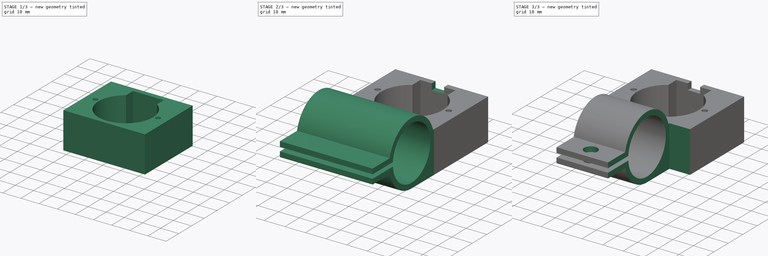
[diagram: build sequence overview — one tinted view per stage of 3, left to right]
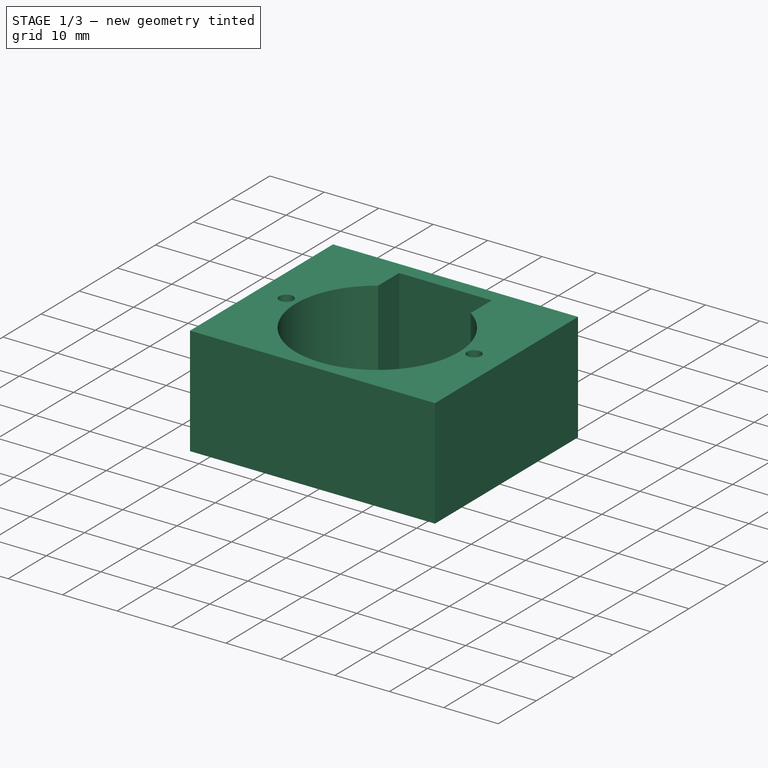
[diagram: stage 1 of 3 — iso view after this stage's code; geometry added in this stage tinted green]
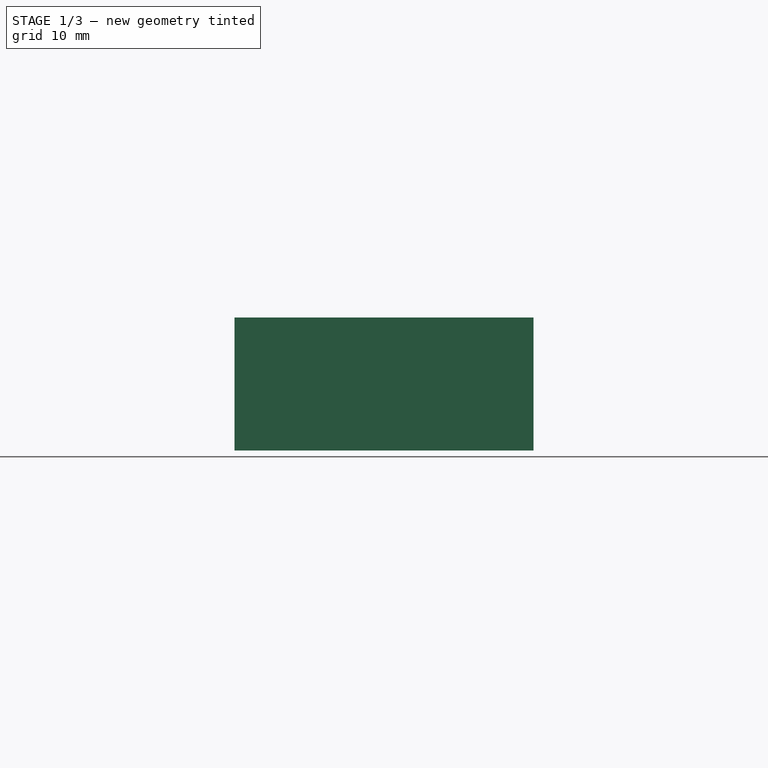
[diagram: stage 1 of 3 — front view after this stage's code; geometry added in this stage tinted green]
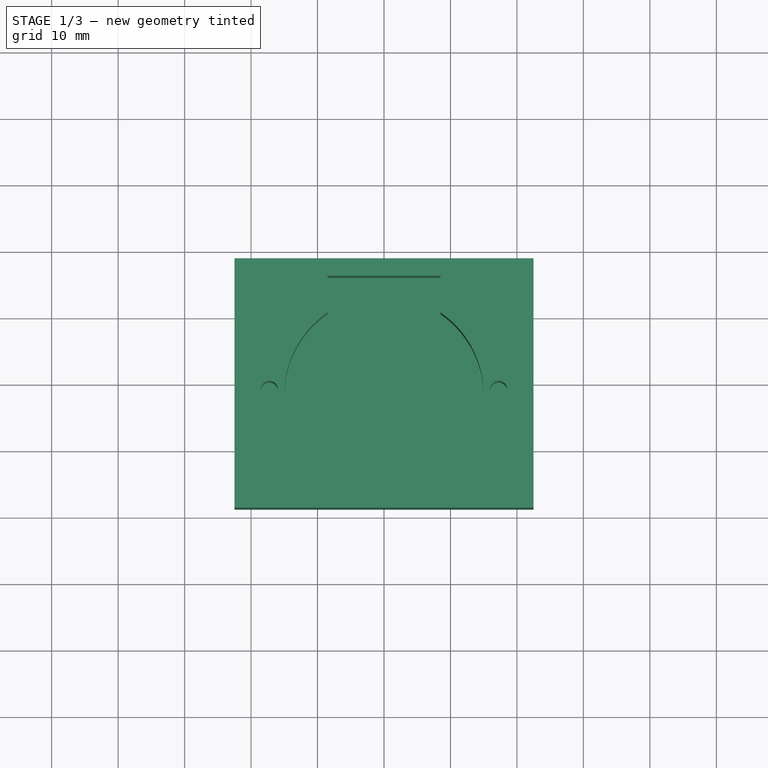
[diagram: stage 1 of 3 — top view after this stage's code; geometry added in this stage tinted green]
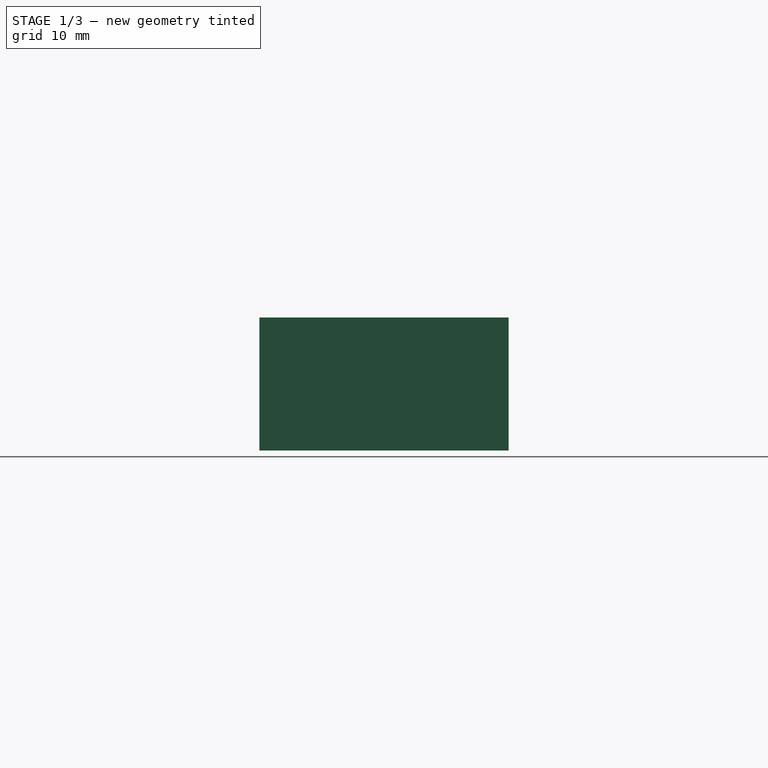
[diagram: stage 1 of 3 — right view after this stage's code; geometry added in this stage tinted green]
FCSTD DOCUMENT  (FreeCAD 0.20R29177 +233 (Git))
Label: motor_mount
License: All rights reserved
LicenseURL: http://en.wikipedia.org/wiki/All_rights_reserved
objects: Sketcher::SketchObject×6, PartDesign::Pocket×6, PartDesign::Pad×2, PartDesign::Body×1
note: 23 computed .brp shape members not serialized (recipe doc carries the construction recipe); baked Part::Feature solids carry a one-line shape summary decoded from their .brp

FEATURE [Sketcher::SketchObject] Sketch
  FullyConstrained = true
  MapMode = 5
  Support = -> [XY_Plane]
  sketch-geometry (6):
    g0: LineSegment StartX=-22.5 StartY=18.75 StartZ=0 EndX=22.5 EndY=18.75 EndZ=0
    g1: LineSegment StartX=22.5 StartY=18.75 StartZ=0 EndX=22.5 EndY=-18.75 EndZ=0
    g2: LineSegment StartX=22.5 StartY=-18.75 StartZ=0 EndX=-22.5 EndY=-18.75 EndZ=0
    g3: LineSegment StartX=-22.5 StartY=-18.75 StartZ=0 EndX=-22.5 EndY=18.75 EndZ=0
    g4: LineSegment StartX=0 StartY=18.75 StartZ=0 EndX=0 EndY=-18.75 EndZ=0
    g5: LineSegment StartX=-22.5 StartY=0 StartZ=0 EndX=22.5 EndY=0 EndZ=0
  constraints (18):
    c: Coincident(g0,g1)
    c: Coincident(g1,g2)
    c: Coincident(g2,g3)
    c: Coincident(g3,g0)
    c: Horizontal(g0)
    c: Horizontal(g2)
    c: Vertical(g1)
    c: Vertical(g3)
    c: PointOnObject(g4,g-2)
    c: PointOnObject(g4,g-2)
    c: PointOnObject(g5,g-1)
    c: PointOnObject(g5,g-1)
    c: Symmetric(g0,g0,g4)
    c: Symmetric(g0,g2,g5)
    c: PointOnObject(g4,g2)
    c: PointOnObject(g5,g1)
    c: DistanceX(g0,g0) = 45
    c: DistanceY(g3,g3) = 37.5
FEATURE [PartDesign::Pad] Pad
  Direction = (0,0,1)
  Length = 20
  Length2 = 10
  Profile = -> Sketch
  ReferenceAxis = -> Sketch [N_Axis]
  Type = 0
FEATURE [Sketcher::SketchObject] Sketch001
  ExternalGeometry = -> [Pad]
  FullyConstrained = true
  MapMode = 5
  Placement = pos=(0,0,20) rot=(0,0,1;0rad)
  Support = -> [Pad]
  sketch-geometry (7):
    g0: Circle CenterX=0 CenterY=-1.75 CenterZ=0 NormalX=0 NormalY=0 NormalZ=1 AngleXU=0 Radius=15
    g1: LineSegment StartX=-8.5 StartY=10.6092 StartZ=0 EndX=8.5 EndY=10.6092 EndZ=0
    g2: LineSegment StartX=8.5 StartY=10.6092 StartZ=0 EndX=8.5 EndY=16.1092 EndZ=0
    g3: LineSegment StartX=8.5 StartY=16.1092 StartZ=0 EndX=-8.5 EndY=16.1092 EndZ=0
    g4: LineSegment StartX=-8.5 StartY=16.1092 StartZ=0 EndX=-8.5 EndY=10.6092 EndZ=0
    g5: ArcOfCircle CenterX=0 CenterY=-1.75 CenterZ=0 NormalX=0 NormalY=0 NormalZ=1 AngleXU=0 Radius=15 StartAngle=2.17325 EndAngle=7.25153
    g6: LineSegment StartX=0 StartY=-16.75 StartZ=0 EndX=0 EndY=-18.75 EndZ=0
  constraints (21):
    c: PointOnObject(g0,g-2)
    c: Diameter(g0) = 30
    c: Coincident(g1,g2)
    c: Coincident(g2,g3)
    c: Coincident(g3,g4)
    c: Coincident(g4,g1)
    c: Horizontal(g1)
    c: Horizontal(g3)
    c: Vertical(g2)
    c: Vertical(g4)
    c: PointOnObject(g1,g0)
    c: Coincident(g5,g0)
    c: Coincident(g5,g2)
    c: Coincident(g5,g4)
    c: PointOnObject(g6,g0)
    c: PointOnObject(g6,g-3)
    c: Vertical(g6)
    c: PointOnObject(g6,g-2)
    c: DistanceY(g6,g6) = 2
    c: DistanceX(g1,g1) = 17
    c: DistanceY(g2,g2) = 5.5
FEATURE [PartDesign::Pocket] Pocket
  BaseFeature = -> Pad
  Direction = (0,0,-1)
  Length = 18
  Length2 = 5
  Profile = -> Sketch001
  ReferenceAxis = -> Sketch001 [N_Axis]
  Type = 0
FEATURE [Sketcher::SketchObject] Sketch002
  FullyConstrained = true
  MapMode = 5
  Placement = pos=(0,0,20) rot=(0,0,1;0rad)
  Support = -> [Pocket]
  sketch-geometry (5):
    g0: Circle CenterX=-17.25 CenterY=-1 CenterZ=0 NormalX=0 NormalY=0 NormalZ=1 AngleXU=0 Radius=1.3
    g1: Circle CenterX=17.25 CenterY=-1 CenterZ=0 NormalX=0 NormalY=0 NormalZ=1 AngleXU=0 Radius=1.3
    g2: LineSegment StartX=-17.25 StartY=-1 StartZ=0 EndX=17.25 EndY=-1 EndZ=0
    g3: GeomPoint X=0 Y=-1 Z=0
    g4: LineSegment StartX=0 StartY=0 StartZ=0 EndX=0 EndY=-1 EndZ=0
  constraints (11):
    c: Diameter(g0) = 2.6
    c: Equal(g1,g0)
    c: DistanceX(g0,g1) = 34.5
    c: Coincident(g2,g0)
    c: Coincident(g2,g1)
    c: Horizontal(g2)
    c: Symmetric(g0,g1,g3)
    c: PointOnObject(g3,g-2)
    c: Coincident(g4,g-1)
    c: Coincident(g4,g3)
    c: DistanceY(g4,g4) = 1
FEATURE [PartDesign::Pocket] Pocket003
  BaseFeature = -> Pocket
  Direction = (0,0,-1)
  Length = 15
  Length2 = 5
  Profile = -> Sketch002
  ReferenceAxis = -> Sketch002 [N_Axis]
  Type = 0
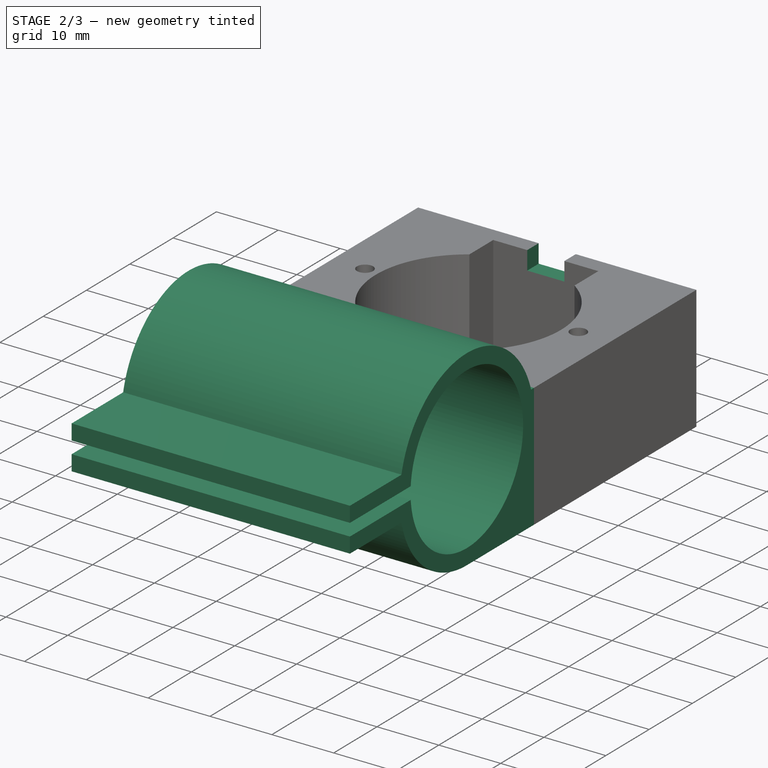
[diagram: stage 2 of 3 — iso view after this stage's code; geometry added in this stage tinted green]
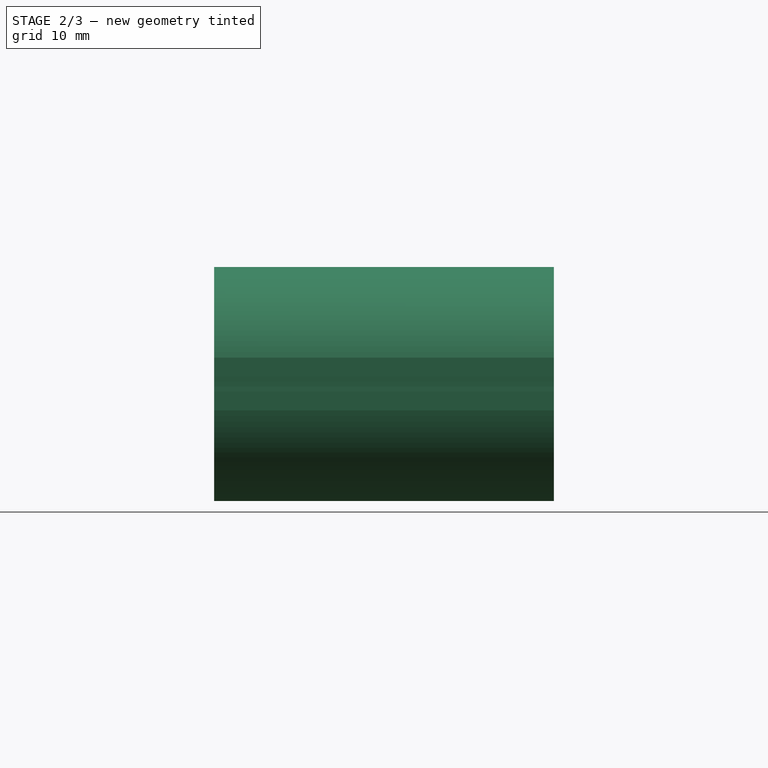
[diagram: stage 2 of 3 — front view after this stage's code; geometry added in this stage tinted green]
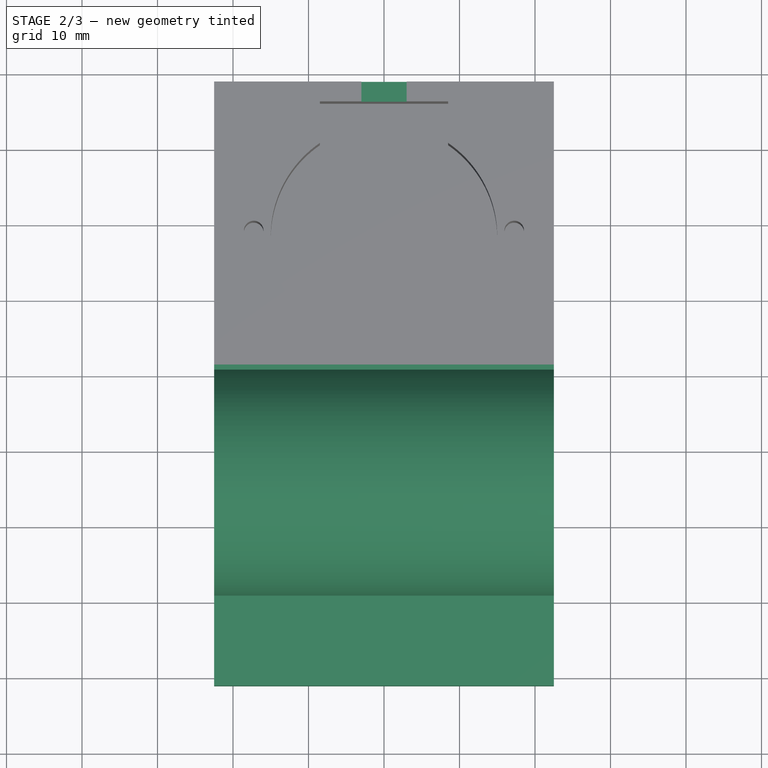
[diagram: stage 2 of 3 — top view after this stage's code; geometry added in this stage tinted green]
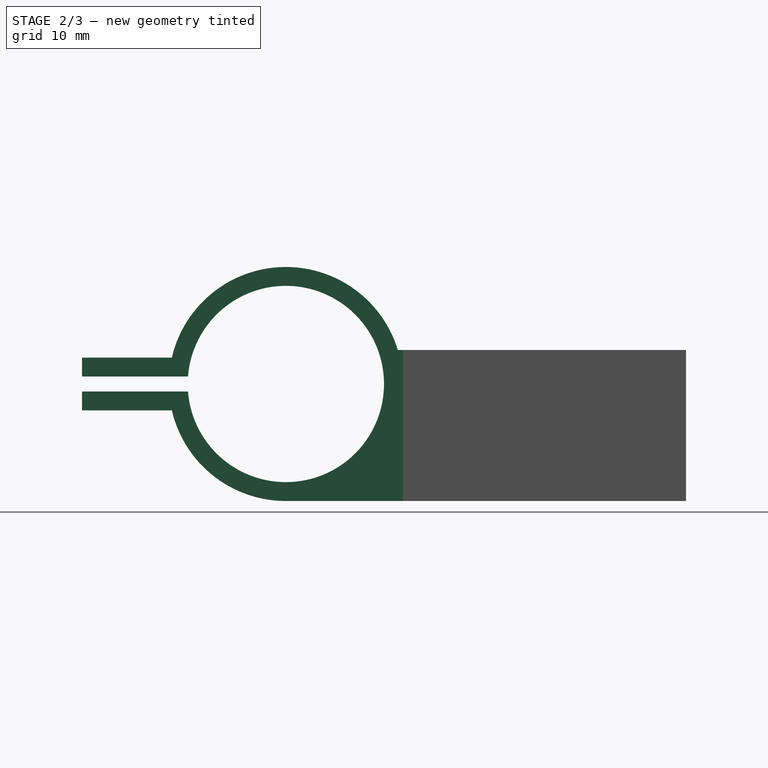
[diagram: stage 2 of 3 — right view after this stage's code; geometry added in this stage tinted green]
FEATURE [Sketcher::SketchObject] Sketch003
  ExternalGeometry = -> [Pocket003]
  FullyConstrained = true
  MapMode = 5
  Placement = pos=(0,0,20) rot=(0,0,1;0rad)
  Support = -> [Pocket003]
  sketch-geometry (5):
    g0: LineSegment StartX=-3 StartY=18.75 StartZ=0 EndX=3 EndY=18.75 EndZ=0
    g1: LineSegment StartX=3 StartY=18.75 StartZ=0 EndX=3 EndY=16.1092 EndZ=0
    g2: LineSegment StartX=3 StartY=16.1092 StartZ=0 EndX=-3 EndY=16.1092 EndZ=0
    g3: LineSegment StartX=-3 StartY=16.1092 StartZ=0 EndX=-3 EndY=18.75 EndZ=0
    g4: LineSegment StartX=0 StartY=18.75 StartZ=0 EndX=0 EndY=16.1092 EndZ=0
  constraints (15):
    c: Coincident(g0,g1)
    c: Coincident(g1,g2)
    c: Coincident(g2,g3)
    c: Coincident(g3,g0)
    c: Horizontal(g0)
    c: Horizontal(g2)
    c: Vertical(g1)
    c: Vertical(g3)
    c: PointOnObject(g4,g0)
    c: Vertical(g4)
    c: Symmetric(g2,g1,g4)
    c: PointOnObject(g4,g-2)
    c: DistanceX(g0,g0) = 6
    c: PointOnObject(g4,g-3)
    c: PointOnObject(g4,g-4)
FEATURE [PartDesign::Pocket] Pocket001
  BaseFeature = -> Pocket003
  Direction = (0,0,-1)
  Length = 3
  Length2 = 5
  Profile = -> Sketch003
  ReferenceAxis = -> Sketch003 [N_Axis]
  Type = 0
FEATURE [Sketcher::SketchObject] Sketch006
  ExternalGeometry = -> [Pocket001]
  FullyConstrained = true
  MapMode = 5
  Placement = pos=(-22.5,0,0) rot=(0.57735,-0.57735,-0.57735;2.0944rad)
  Support = -> [Pocket001]
  sketch-geometry (28):
    g0: Circle CenterX=34.25 CenterY=15.5 CenterZ=0 NormalX=0 NormalY=0 NormalZ=1 AngleXU=0 Radius=13
    g1: LineSegment StartX=18.75 StartY=15.5 StartZ=0 EndX=34.25 EndY=15.5 EndZ=0
    g2: Circle CenterX=34.25 CenterY=15.5 CenterZ=0 NormalX=0 NormalY=0 NormalZ=1 AngleXU=0 Radius=15.5
    g3: LineSegment StartX=34.25 StartY=15.5 StartZ=0 EndX=34.25 EndY=0 EndZ=0
    g4: GeomPoint X=34.25 Y=2.5 Z=0
    g5: LineSegment StartX=46.77 StartY=12 StartZ=0 EndX=61.25 EndY=12 EndZ=0
    g6: LineSegment StartX=61.25 StartY=12 StartZ=0 EndX=61.25 EndY=19 EndZ=0
    g7: LineSegment StartX=61.25 StartY=19 StartZ=0 EndX=46.77 EndY=19 EndZ=0
    g8: LineSegment StartX=46.77 StartY=19 StartZ=0 EndX=46.77 EndY=12 EndZ=0
    g9: LineSegment StartX=49.75 StartY=12 StartZ=0 EndX=49.75 EndY=19 EndZ=0
    g10: LineSegment StartX=52.325 StartY=12 StartZ=0 EndX=52.325 EndY=19 EndZ=0
    g11: LineSegment StartX=58.675 StartY=12 StartZ=0 EndX=58.675 EndY=19 EndZ=0
    g12: GeomPoint X=55.5 Y=12 Z=0
    g13: LineSegment StartX=47.2115 StartY=14.5 StartZ=0 EndX=61.25 EndY=14.5 EndZ=0
    g14: LineSegment StartX=47.2115 StartY=16.5 StartZ=0 EndX=61.25 EndY=16.5 EndZ=0
    g15: GeomPoint X=61.25 Y=15.5 Z=0
    g16: ArcOfCircle CenterX=34.25 CenterY=15.5 CenterZ=0 NormalX=0 NormalY=0 NormalZ=1 AngleXU=0 Radius=13 StartAngle=0.0769991 EndAngle=6.20619
    g17: ArcOfCircle CenterX=34.25 CenterY=15.5 CenterZ=0 NormalX=0 NormalY=0 NormalZ=1 AngleXU=0 Radius=15.5 StartAngle=4.71239 EndAngle=6.05541
    g18: ArcOfCircle CenterX=34.25 CenterY=15.5 CenterZ=0 NormalX=0 NormalY=0 NormalZ=1 AngleXU=0 Radius=15.5 StartAngle=0.227771 EndAngle=2.84703
    g19: LineSegment StartX=18.75 StartY=0 StartZ=0 EndX=34.25 EndY=4.28315e-11 EndZ=0
    g20: LineSegment StartX=18.75 StartY=20 StartZ=0 EndX=19.4176 EndY=20 EndZ=0
    g21: LineSegment StartX=49.3497 StartY=12 StartZ=0 EndX=61.25 EndY=12 EndZ=0
    g22: LineSegment StartX=61.25 StartY=12 StartZ=0 EndX=61.25 EndY=14.5 EndZ=0
    g23: LineSegment StartX=61.25 StartY=14.5 StartZ=0 EndX=47.2115 EndY=14.5 EndZ=0
    g24: LineSegment StartX=47.2115 StartY=16.5 StartZ=0 EndX=61.25 EndY=16.5 EndZ=0
    g25: LineSegment StartX=61.25 StartY=16.5 StartZ=0 EndX=61.25 EndY=19 EndZ=0
    g26: LineSegment StartX=61.25 StartY=19 StartZ=0 EndX=49.3497 EndY=19 EndZ=0
    g27: LineSegment StartX=18.75 StartY=0 StartZ=0 EndX=18.75 EndY=20 EndZ=0
  constraints (73):
    c: Diameter(g0) = 26
    c: Coincident(g1,g0)
    c: Coincident(g2,g0)
    c: Coincident(g3,g0)
    c: PointOnObject(g3,g2)
    c: PointOnObject(g4,g3)
    c: PointOnObject(g4,g0)
    c: PointOnObject(g1,g2)
    c: Coincident(g5,g6)
    c: Coincident(g6,g7)
    c: Coincident(g7,g8)
    c: Coincident(g8,g5)
    c: PointOnObject(g5,g0)
    c: PointOnObject(g7,g0)
    c: PointOnObject(g9,g5)
    c: PointOnObject(g9,g7)
    c: Tangent(g9,g2)
    c: PointOnObject(g10,g5)
    c: PointOnObject(g10,g7)
    c: PointOnObject(g11,g7)
    c: Symmetric(g10,g11,g12)
    c: Symmetric(g9,g5,g12)
    c: PointOnObject(g13,g0)
    c: PointOnObject(g13,g6)
    c: Symmetric(g13,g14,g15)
    c: Symmetric(g5,g6,g15)
    c: Coincident(g16,g0)
    c: Coincident(g16,g13)
    c: Coincident(g16,g14)
    c: Coincident(g17,g16)
    c: PointOnObject(g17,g2)
    c: Coincident(g18,g16)
    c: PointOnObject(g18,g2)
    c: PointOnObject(g18,g7)
    c: PointOnObject(g17,g5)
    c: Coincident(g19,g17)
    c: Coincident(g21,g17)
    c: Coincident(g21,g5)
    c: Coincident(g22,g21)
    c: Coincident(g23,g22)
    c: Coincident(g23,g16)
    c: Coincident(g22,g13)
    c: Coincident(g24,g16)
    c: Coincident(g25,g24)
    c: Coincident(g25,g6)
    c: Coincident(g26,g25)
    c: Coincident(g24,g14)
    c: Coincident(g26,g18)
    c: Coincident(g27,g19)
    c: Coincident(g27,g20)
    c: Perpendicular(g27,g19)
    c: Perpendicular(g27,g20)
    c: Parallel(g19,g1)
    c: Parallel(g19,g5)
    c: Parallel(g23,g24)
    c: Parallel(g24,g7)
    c: Parallel(g7,g5)
    c: Perpendicular(g7,g8)
    c: Parallel(g8,g9)
    c: Parallel(g9,g10)
    c: Parallel(g10,g11)
    c: Parallel(g6,g11)
    c: Perpendicular(g3,g1)
    c: Distance(g4,g3) = 2.5
    c: Distance(g9,g12) = 5.75
    c: Distance(g22,g21) = 2.5
    c: Distance(g24,g22) = 2
    c: Distance(g11,g10) = 6.35
    c: PointOnObject(g1,g27)
    c: Tangent(g19,g2)
    c: Coincident(g19,g-3)
    c: Coincident(g20,g18)
    c: Coincident(g20,g-3)
FEATURE [PartDesign::Pad] Pad002
  BaseFeature = -> Pocket001
  Direction = (-1,0,0)
  Length = 10
  Length2 = 10
  Profile = -> Sketch006
  ReferenceAxis = -> Sketch006 [N_Axis]
  Reversed = true
  Type = 3
  UpToFace = -> Pocket001 [Face3]
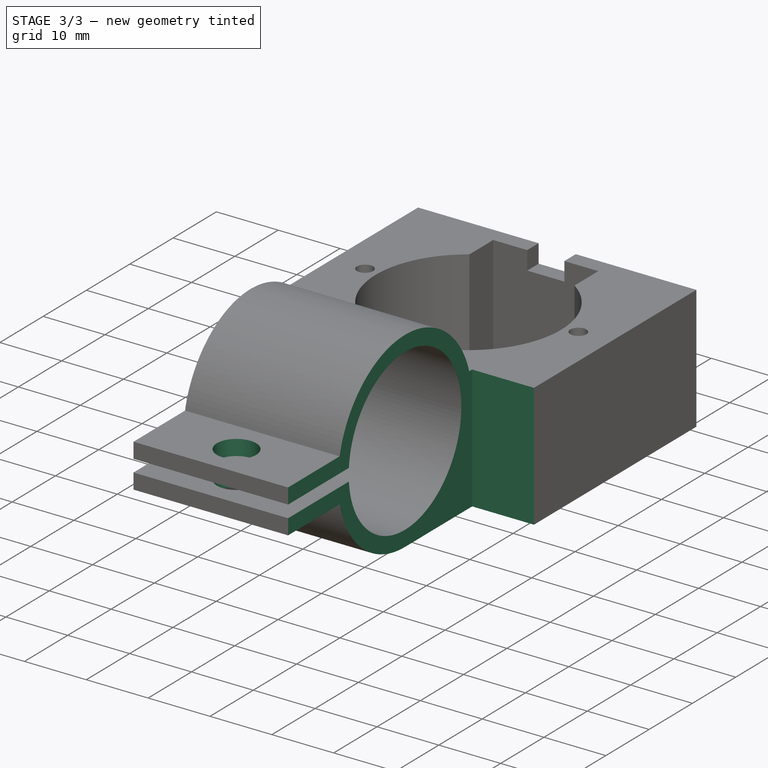
[diagram: stage 3 of 3 — iso view after this stage's code; geometry added in this stage tinted green]
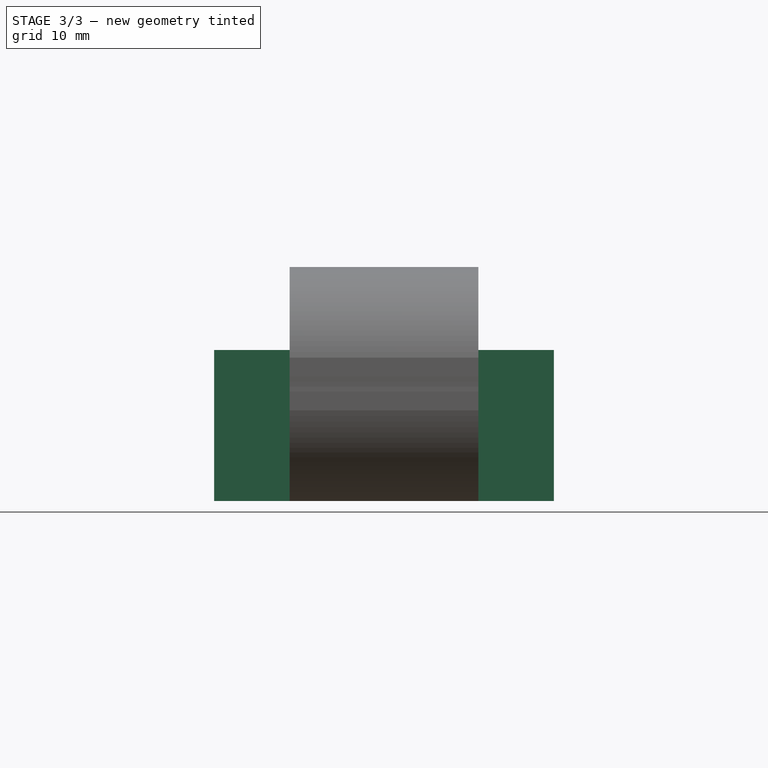
[diagram: stage 3 of 3 — front view after this stage's code; geometry added in this stage tinted green]
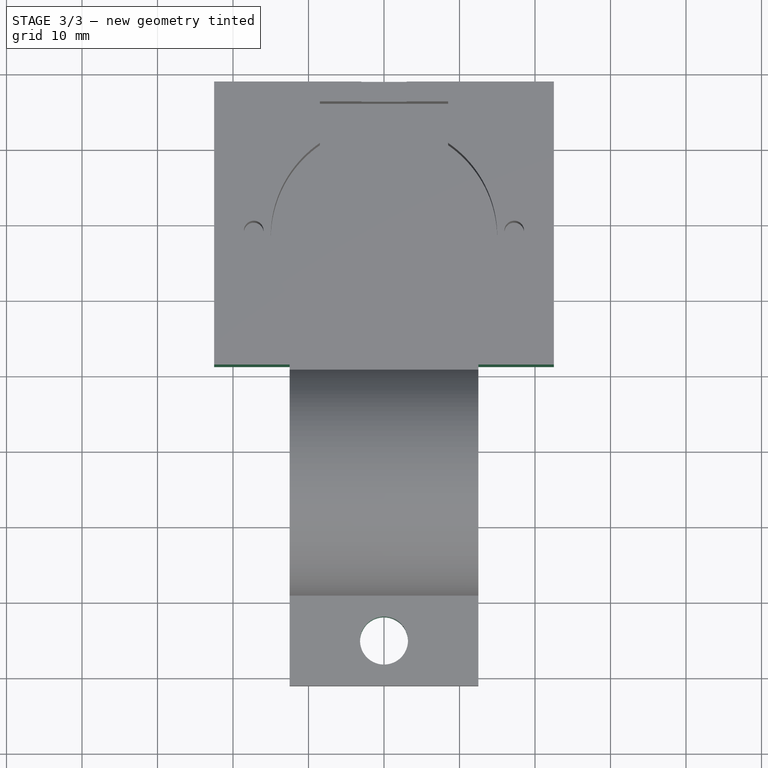
[diagram: stage 3 of 3 — top view after this stage's code; geometry added in this stage tinted green]
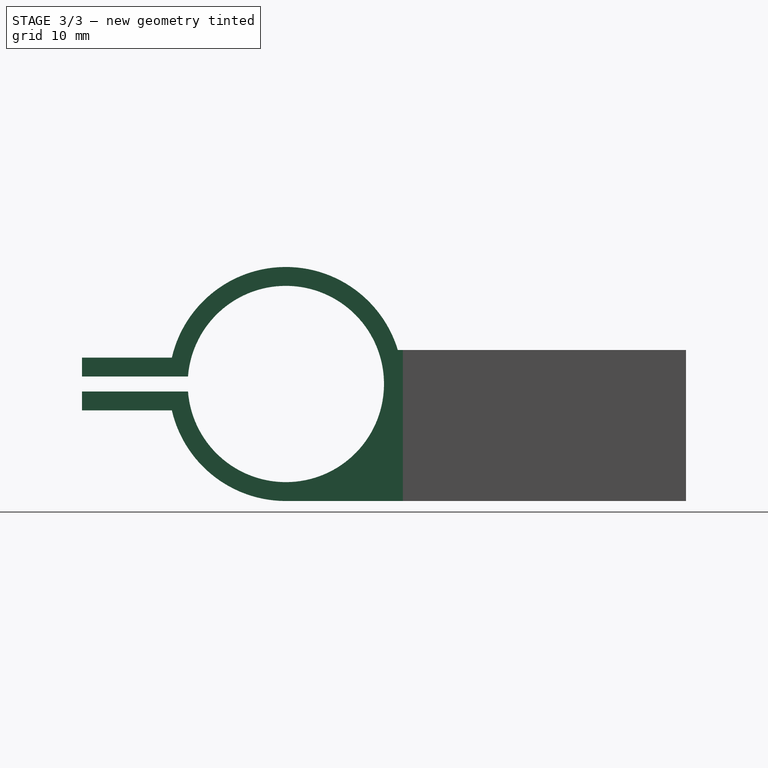
[diagram: stage 3 of 3 — right view after this stage's code; geometry added in this stage tinted green]
FEATURE [PartDesign::Pocket] Pocket004
  BaseFeature = -> Pad002
  Direction = (1,0,0)
  Length = 10
  Length2 = 5
  Profile = -> Pad002 [Face18]
  Type = 0
FEATURE [PartDesign::Pocket] Pocket005
  BaseFeature = -> Pocket004
  Direction = (-1,0,0)
  Length = 10
  Length2 = 5
  Profile = -> Pocket004 [Face11]
  Type = 0
FEATURE [Sketcher::SketchObject] Sketch007
  ExternalGeometry = -> [Pocket005]
  FullyConstrained = true
  MapMode = 5
  Placement = pos=(0,-1.7e-14,19) rot=(0,0,1;0rad)
  Support = -> [Pocket005]
  sketch-geometry (2):
    g0: Circle CenterX=0 CenterY=-55.2998 CenterZ=0 NormalX=0 NormalY=0 NormalZ=1 AngleXU=0 Radius=3.175
    g1: LineSegment StartX=-12.5 StartY=-55.2998 StartZ=0 EndX=0 EndY=-55.2998 EndZ=0
  constraints (5):
    c: PointOnObject(g0,g-2)
    c: Coincident(g1,g0)
    c: Horizontal(g1)
    c: Symmetric(g-3,g-3,g1)
    c: Diameter(g0) = 6.35
FEATURE [PartDesign::Pocket] Pocket006
  BaseFeature = -> Pocket005
  Direction = (0,9e-16,-1)
  Length = 0
  Length2 = 5
  Profile = -> Sketch007
  ReferenceAxis = -> Sketch007 [N_Axis]
  Type = 3
  UpToFace = -> Pocket005 [Face29]
FEATURE [PartDesign::Body] Body
  Group = -> [Sketch,Pad,Sketch001,Pocket,Sketch002,Pocket003,Sketch003,Pocket001,Sketch006,Pad002,Pocket004,Pocket005,Sketch007,Pocket006]
  Origin = -> Origin
  Tip = -> Pad002
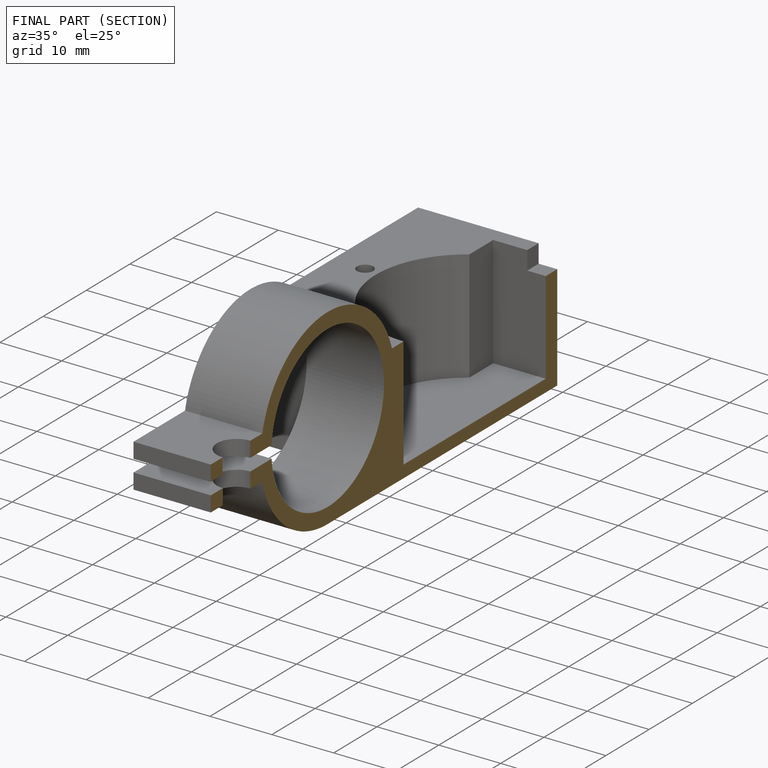
[diagram: finished part — half-section view (interior)]
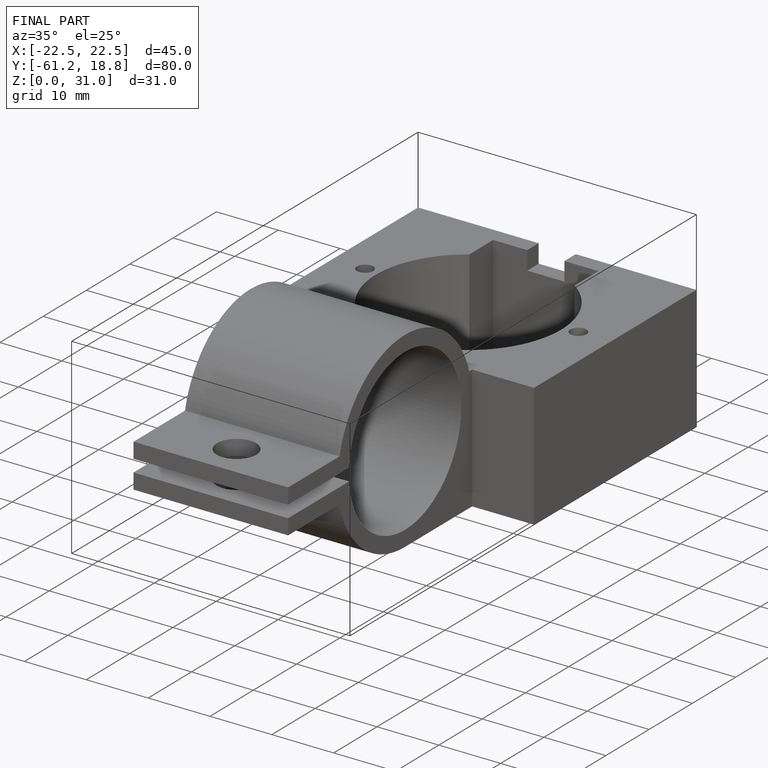
[diagram: finished part — iso view with bounding-box wireframe]
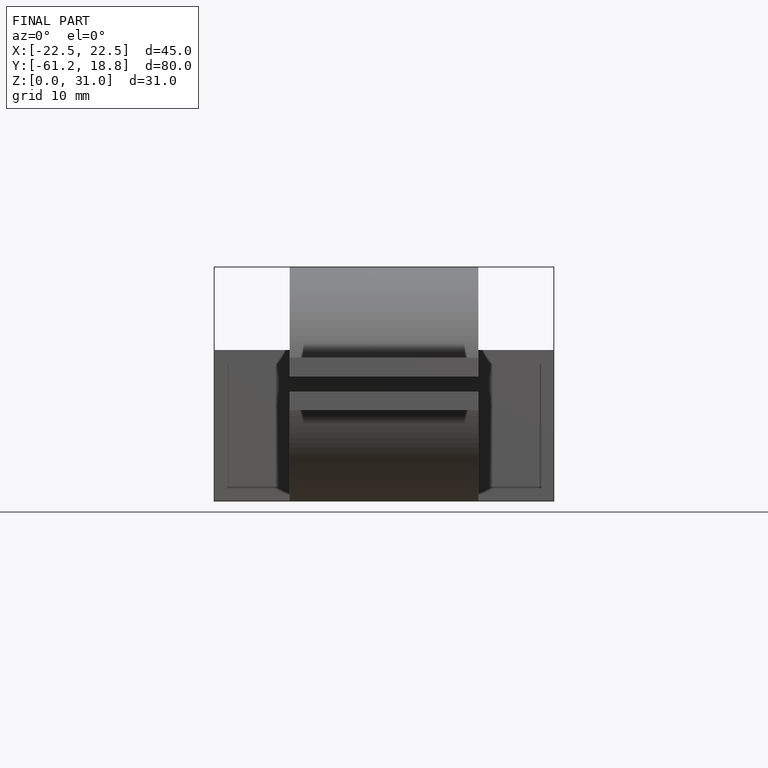
[diagram: finished part — front view with bounding-box wireframe]
